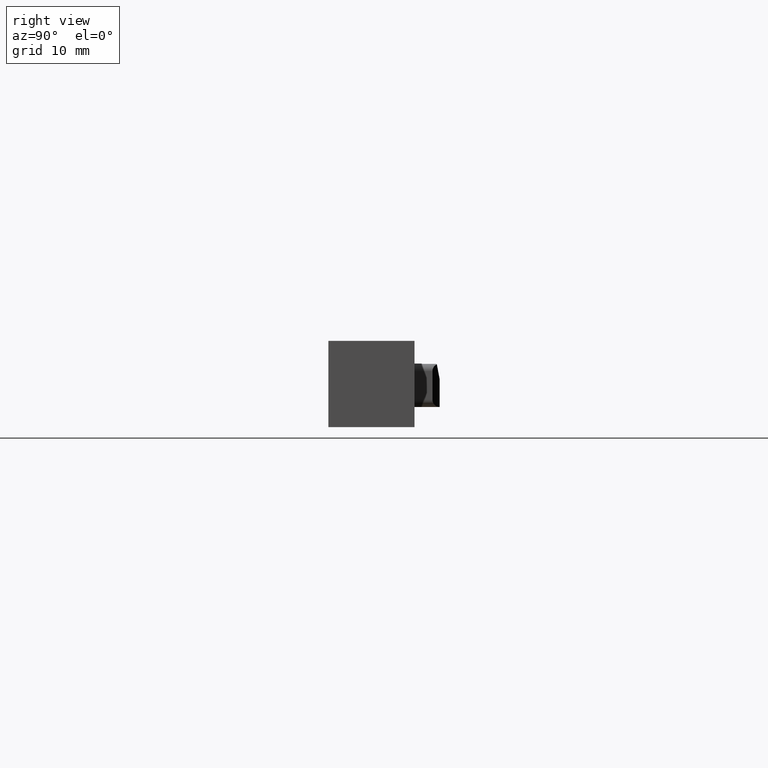
[diagram: clean part render]
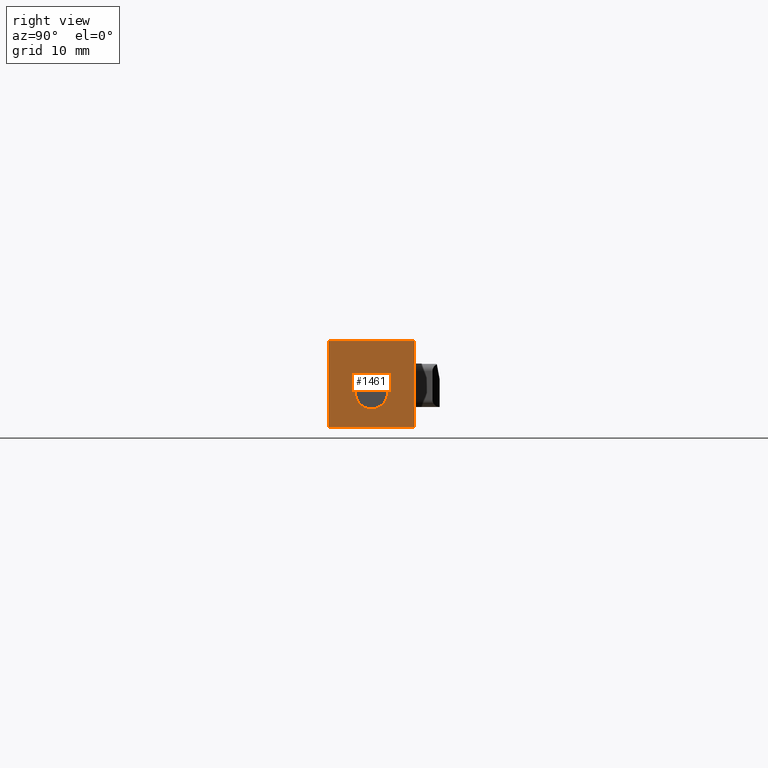
[diagram: same view with one face highlighted and labeled with its STEP entity id]
A machine part, right view. The second image highlights one B-rep face of the part: STEP entity #1461.
In plain terms, the highlighted planar face has unit normal (1, 0, -0).
Its self-contained STEP definition (entity closure, byte-faithful):
#3 = CARTESIAN_POINT ( 'NONE',  ( -2.914335439641035900E-015, 0.0000000000000000000, -24.00000000000000000 ) ) ;
#52 = DIRECTION ( 'NONE',  ( 1.000000000000000000, 0.0000000000000000000, -2.428612866367529900E-016 ) ) ;
#88 = CIRCLE ( 'NONE', #1275, 2.249999999999998700 ) ;
#139 = CARTESIAN_POINT ( 'NONE',  ( 0.0000000000000000000, -12.00000000000000000, -12.00000000000000000 ) ) ;
#201 = VERTEX_POINT ( 'NONE', #1671 ) ;
#217 = EDGE_CURVE ( 'NONE', #671, #397, #701, .T. ) ;
#236 = VERTEX_POINT ( 'NONE', #2263 ) ;
#261 = EDGE_CURVE ( 'NONE', #201, #2313, #1659, .T. ) ;
#283 = EDGE_CURVE ( 'NONE', #397, #236, #1021, .T. ) ;
#397 = VERTEX_POINT ( 'NONE', #3 ) ;
#516 = VECTOR ( 'NONE', #1874, 1000.000000000000000 ) ;
#549 = LINE ( 'NONE', #2072, #2022 ) ;
#624 = CARTESIAN_POINT ( 'NONE',  ( -1.202163368851927700E-015, -6.000000000000000000, -16.95000000000000300 ) ) ;
#671 = VERTEX_POINT ( 'NONE', #944 ) ;
#691 = VECTOR ( 'NONE', #812, 1000.000000000000000 ) ;
#701 = LINE ( 'NONE', #1677, #1593 ) ;
#802 = CARTESIAN_POINT ( 'NONE',  ( -2.914335439641035900E-015, -12.00000000000000000, -24.00000000000000000 ) ) ;
#806 = LINE ( 'NONE', #2351, #691 ) ;
#811 = DIRECTION ( 'NONE',  ( 1.000000000000000000, 0.0000000000000000000, -2.428612866367529900E-016 ) ) ;
#812 = DIRECTION ( 'NONE',  ( 0.0000000000000000000, 1.000000000000000000, 0.0000000000000000000 ) ) ;
#894 = ORIENTED_EDGE ( 'NONE', *, *, #217, .T. ) ;
#922 = CARTESIAN_POINT ( 'NONE',  ( -1.748601263784621600E-015, -6.000000000000000000, -19.20000000000000300 ) ) ;
#944 = CARTESIAN_POINT ( 'NONE',  ( -2.914335439641035900E-015, -12.00000000000000000, -24.00000000000000000 ) ) ;
#1021 = LINE ( 'NONE', #2451, #516 ) ;
#1096 = EDGE_LOOP ( 'NONE', ( #1877, #1629, #1233, #894 ) ) ;
#1111 = DIRECTION ( 'NONE',  ( -2.428612866367528900E-016, 0.0000000000000000000, -1.000000000000000000 ) ) ;
#1148 = FACE_OUTER_BOUND ( 'NONE', #1096, .T. ) ;
#1149 = ORIENTED_EDGE ( 'NONE', *, *, #261, .F. ) ;
#1186 = PLANE ( 'NONE',  #1398 ) ;
#1197 = EDGE_CURVE ( 'NONE', #671, #1841, #549, .T. ) ;
#1233 = ORIENTED_EDGE ( 'NONE', *, *, #1197, .F. ) ;
#1275 = AXIS2_PLACEMENT_3D ( 'NONE', #1957, #811, #2150 ) ;
#1376 = DIRECTION ( 'NONE',  ( 2.428612866367529900E-016, 0.0000000000000000000, 1.000000000000000000 ) ) ;
#1398 = AXIS2_PLACEMENT_3D ( 'NONE', #802, #52, #1376 ) ;
#1461 = ADVANCED_FACE ( 'NONE', ( #1531, #1148 ), #1186, .T. ) ;
#1472 = EDGE_CURVE ( 'NONE', #2313, #201, #88, .T. ) ;
#1531 = FACE_BOUND ( 'NONE', #2322, .T. ) ;
#1577 = ORIENTED_EDGE ( 'NONE', *, *, #1472, .F. ) ;
#1593 = VECTOR ( 'NONE', #2060, 1000.000000000000000 ) ;
#1629 = ORIENTED_EDGE ( 'NONE', *, *, #2290, .F. ) ;
#1659 = CIRCLE ( 'NONE', #1952, 2.249999999999998700 ) ;
#1671 = CARTESIAN_POINT ( 'NONE',  ( -2.295039158717315400E-015, -6.000000000000000000, -21.44999999999999900 ) ) ;
#1677 = CARTESIAN_POINT ( 'NONE',  ( -2.914335439641035900E-015, -12.00000000000000000, -24.00000000000000000 ) ) ;
#1689 = DIRECTION ( 'NONE',  ( 2.428612866367529900E-016, 0.0000000000000000000, 1.000000000000000000 ) ) ;
#1841 = VERTEX_POINT ( 'NONE', #139 ) ;
#1874 = DIRECTION ( 'NONE',  ( 2.428612866367529900E-016, 0.0000000000000000000, 1.000000000000000000 ) ) ;
#1877 = ORIENTED_EDGE ( 'NONE', *, *, #283, .T. ) ;
#1952 = AXIS2_PLACEMENT_3D ( 'NONE', #922, #2065, #1111 ) ;
#1957 = CARTESIAN_POINT ( 'NONE',  ( -1.748601263784621600E-015, -6.000000000000000000, -19.20000000000000300 ) ) ;
#2022 = VECTOR ( 'NONE', #1689, 1000.000000000000000 ) ;
#2060 = DIRECTION ( 'NONE',  ( 0.0000000000000000000, 1.000000000000000000, 0.0000000000000000000 ) ) ;
#2065 = DIRECTION ( 'NONE',  ( 1.000000000000000000, 0.0000000000000000000, -2.428612866367529900E-016 ) ) ;
#2072 = CARTESIAN_POINT ( 'NONE',  ( -2.914335439641035900E-015, -12.00000000000000000, -24.00000000000000000 ) ) ;
#2150 = DIRECTION ( 'NONE',  ( -2.428612866367528900E-016, 0.0000000000000000000, -1.000000000000000000 ) ) ;
#2263 = CARTESIAN_POINT ( 'NONE',  ( 0.0000000000000000000, 0.0000000000000000000, -12.00000000000000000 ) ) ;
#2290 = EDGE_CURVE ( 'NONE', #1841, #236, #806, .T. ) ;
#2313 = VERTEX_POINT ( 'NONE', #624 ) ;
#2322 = EDGE_LOOP ( 'NONE', ( #1149, #1577 ) ) ;
#2351 = CARTESIAN_POINT ( 'NONE',  ( 0.0000000000000000000, -12.00000000000000000, -12.00000000000000000 ) ) ;
#2451 = CARTESIAN_POINT ( 'NONE',  ( -2.914335439641035900E-015, 0.0000000000000000000, -24.00000000000000000 ) ) ;